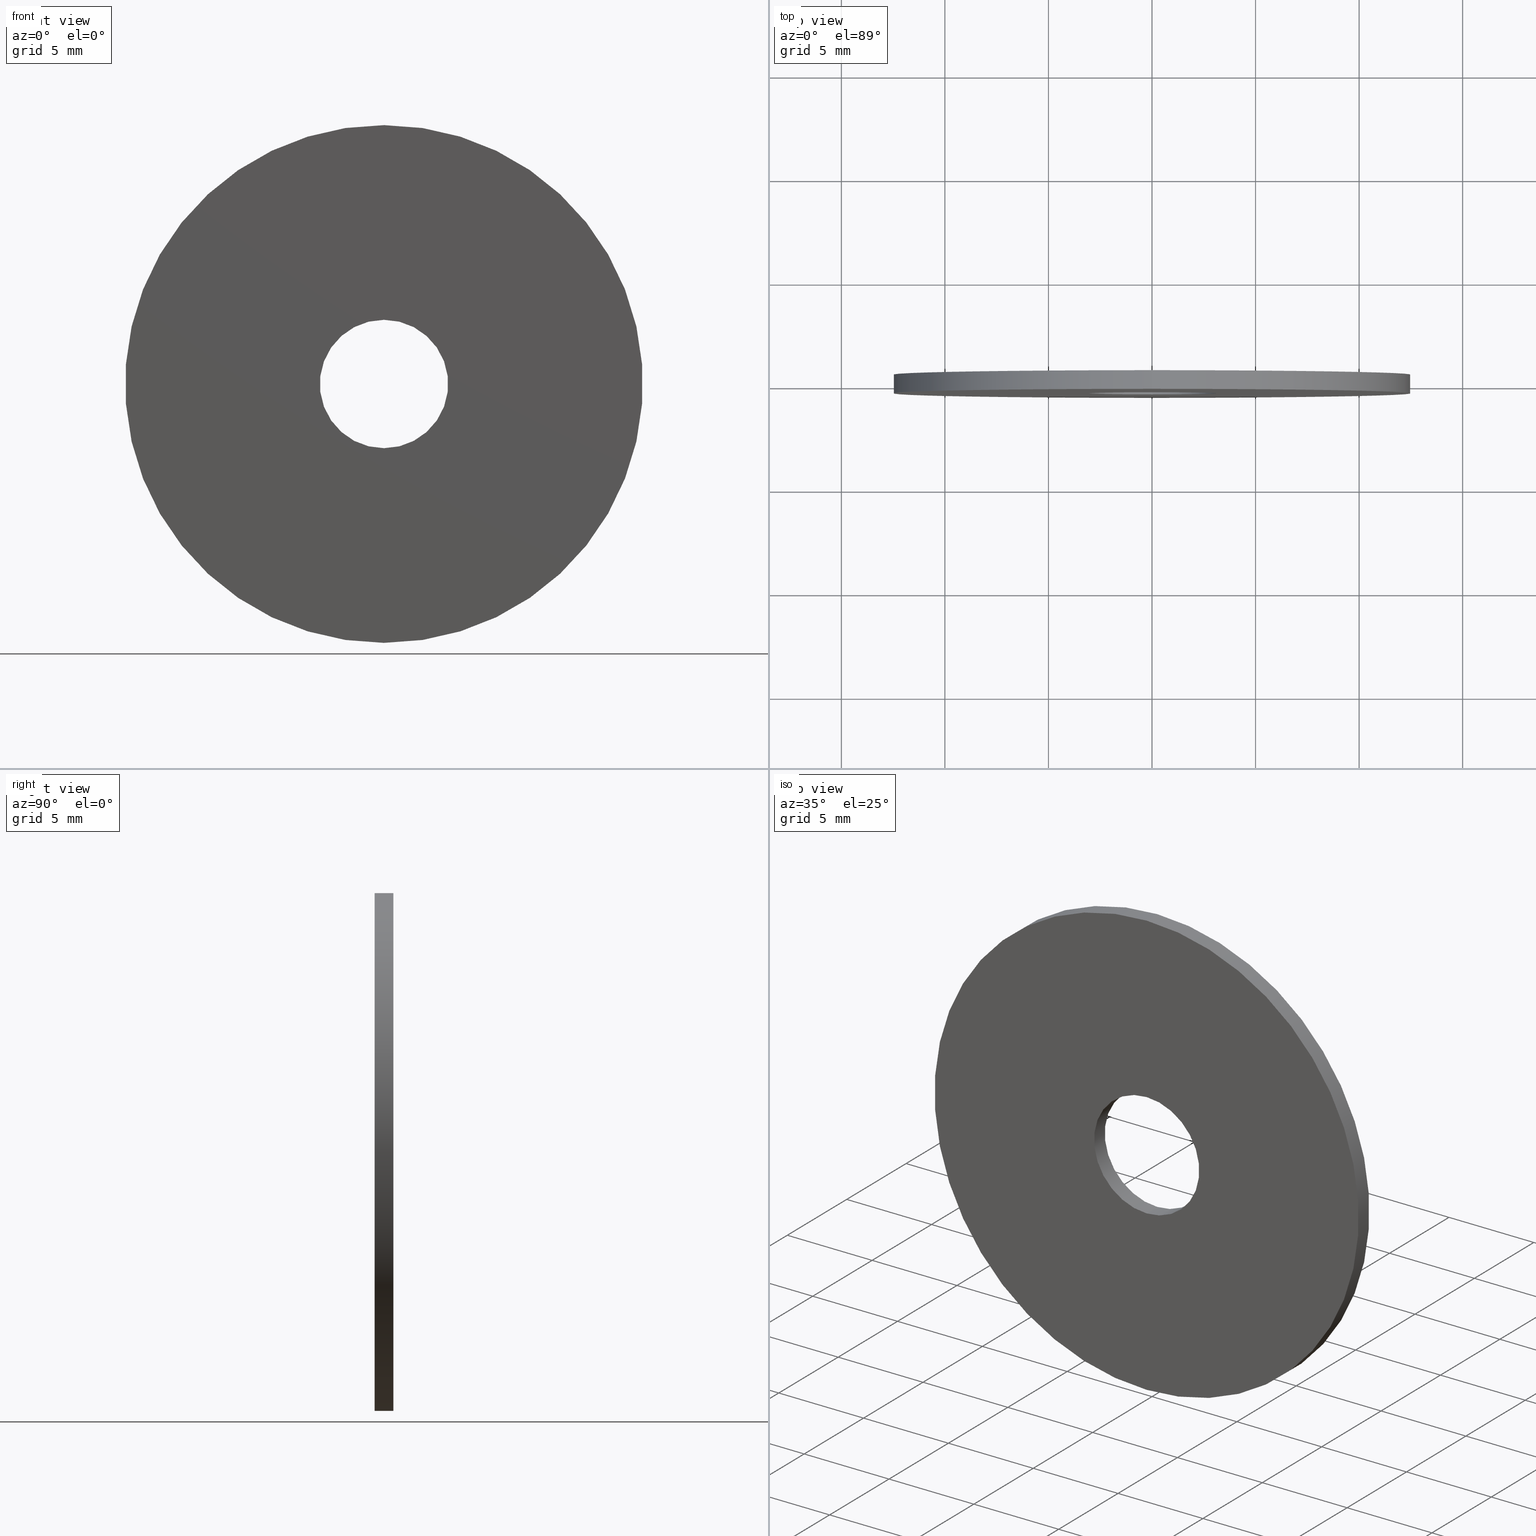
[diagram: canonical four-view strip — front | top / right | iso, engineering-drawing reading convention]
A machine part, canonical four-view strip (front | top / right | iso — engineering-drawing reading convention). The complete STEP part file that produces these views, byte-faithful:
ISO-10303-21;
HEADER;
FILE_DESCRIPTION (( 'STEP AP203' ),
    '1' );
FILE_NAME ('1.4.2.136-ZGH-25-DK0.9.STEP',
    '2024-04-06T05:14:39',
    ( '' ),
    ( '' ),
    'SwSTEP 2.0',
    'SolidWorks 2021',
    '' );
FILE_SCHEMA (( 'CONFIG_CONTROL_DESIGN' ));
ENDSEC;

DATA;
#1 = PERSON_AND_ORGANIZATION_ROLE ( 'design_supplier' ) ;
#2 = CALENDAR_DATE ( 2024, 6, 4 ) ;
#3 = EDGE_CURVE ( 'NONE', #179, #184, #14, .T. ) ;
#4 = VERTEX_POINT ( 'NONE', #39 ) ;
#5 = VERTEX_POINT ( 'NONE', #143 ) ;
#6 = CYLINDRICAL_SURFACE ( 'NONE', #49, 12.50000000000000000 ) ;
#7 = VERTEX_POINT ( 'NONE', #122 ) ;
#8 = APPROVAL ( #136, 'δָ��' ) ;
#9 = ORIENTED_EDGE ( 'NONE', *, *, #90, .F. ) ;
#10 = CC_DESIGN_APPROVAL ( #125, ( #228 ) ) ;
#11 = DIRECTION ( 'NONE',  ( -0.000000000000000000, 1.000000000000000000, -0.000000000000000000 ) ) ;
#12 = DIRECTION ( 'NONE',  ( -0.000000000000000000, 1.000000000000000000, -0.000000000000000000 ) ) ;
#13 = CARTESIAN_POINT ( 'NONE',  ( 0.000000000000000000, -0.4500000000000000111, 0.000000000000000000 ) ) ;
#14 = CIRCLE ( 'NONE', #233, 12.50000000000000000 ) ;
#15 = DIRECTION ( 'NONE',  ( 0.000000000000000000, 1.000000000000000000, 0.000000000000000000 ) ) ;
#16 = ADVANCED_FACE ( 'NONE', ( #183 ), #6, .T. ) ;
#17 = DIRECTION ( 'NONE',  ( -0.000000000000000000, -1.000000000000000000, -0.000000000000000000 ) ) ;
#18 = DIRECTION ( 'NONE',  ( 1.000000000000000000, 0.000000000000000000, 0.000000000000000000 ) ) ;
#19 = COORDINATED_UNIVERSAL_TIME_OFFSET ( 8, 0, .AHEAD. ) ;
#20 = APPROVAL_STATUS ( 'not_yet_approved' ) ;
#21 = ORGANIZATION ( 'δָ��', 'δָ��', '' ) ;
#22 = ORIENTED_EDGE ( 'NONE', *, *, #153, .F. ) ;
#23 = ORIENTED_EDGE ( 'NONE', *, *, #3, .F. ) ;
#24 = PRODUCT_DEFINITION ( 'δ֪', '', #220, #248 ) ;
#25 = EDGE_LOOP ( 'NONE', ( #23, #142 ) ) ;
#26 = DIRECTION ( 'NONE',  ( 0.000000000000000000, 0.000000000000000000, 1.000000000000000000 ) ) ;
#27 = AXIS2_PLACEMENT_3D ( 'NONE', #13, #114, #87 ) ;
#28 = DIRECTION ( 'NONE',  ( 0.000000000000000000, 0.000000000000000000, 1.000000000000000000 ) ) ;
#29 = DIRECTION ( 'NONE',  ( -0.000000000000000000, -1.000000000000000000, -0.000000000000000000 ) ) ;
#30 = CYLINDRICAL_SURFACE ( 'NONE', #80, 3.100000000000000089 ) ;
#31 = CIRCLE ( 'NONE', #162, 12.50000000000000000 ) ;
#32 = CARTESIAN_POINT ( 'NONE',  ( 0.000000000000000000, -0.4500000000000000111, 0.000000000000000000 ) ) ;
#33 = PRODUCT_RELATED_PRODUCT_CATEGORY ( 'detail', '', ( #69 ) ) ;
#34 = COORDINATED_UNIVERSAL_TIME_OFFSET ( 8, 0, .AHEAD. ) ;
#35 = AXIS2_PLACEMENT_3D ( 'NONE', #54, #36, #18 ) ;
#36 = DIRECTION ( 'NONE',  ( 0.000000000000000000, 0.000000000000000000, 1.000000000000000000 ) ) ;
#37 = AXIS2_PLACEMENT_3D ( 'NONE', #32, #11, #28 ) ;
#38 = DIRECTION ( 'NONE',  ( 0.000000000000000000, 0.000000000000000000, 1.000000000000000000 ) ) ;
#39 = CARTESIAN_POINT ( 'NONE',  ( 3.796405077356794918E-16, -0.4500000000000000111, -3.100000000000000089 ) ) ;
#40 = EDGE_CURVE ( 'NONE', #5, #185, #121, .T. ) ;
#41 = CIRCLE ( 'NONE', #27, 3.100000000000000089 ) ;
#42 = ORIENTED_EDGE ( 'NONE', *, *, #153, .T. ) ;
#43 = DIRECTION ( 'NONE',  ( 0.000000000000000000, -0.000000000000000000, 1.000000000000000000 ) ) ;
#44 = CARTESIAN_POINT ( 'NONE',  ( 3.796405077356794918E-16, -0.4500000000000000111, -3.100000000000000089 ) ) ;
#45 = AXIS2_PLACEMENT_3D ( 'NONE', #194, #242, #93 ) ;
#46 = CARTESIAN_POINT ( 'NONE',  ( 0.000000000000000000, 0.4500000000000000111, 0.000000000000000000 ) ) ;
#47 = FACE_OUTER_BOUND ( 'NONE', #106, .T. ) ;
#48 = FACE_OUTER_BOUND ( 'NONE', #25, .T. ) ;
#49 = AXIS2_PLACEMENT_3D ( 'NONE', #82, #202, #163 ) ;
#50 = PERSON_AND_ORGANIZATION ( #236, #21 ) ;
#51 = APPROVAL_STATUS ( 'not_yet_approved' ) ;
#52 = CC_DESIGN_PERSON_AND_ORGANIZATION_ASSIGNMENT ( #53, #229, ( #220 ) ) ;
#53 = PERSON_AND_ORGANIZATION ( #236, #21 ) ;
#54 = CARTESIAN_POINT ( 'NONE',  ( 0.000000000000000000, 0.000000000000000000, 0.000000000000000000 ) ) ;
#55 = DATE_AND_TIME ( #119, #76 ) ;
#56 = ORIENTED_EDGE ( 'NONE', *, *, #40, .F. ) ;
#57 = EDGE_LOOP ( 'NONE', ( #200, #156, #104, #102 ) ) ;
#58 = SHAPE_DEFINITION_REPRESENTATION ( #208, #245 ) ;
#59 = VECTOR ( 'NONE', #17, 1000.000000000000000 ) ;
#60 = ADVANCED_FACE ( 'NONE', ( #167 ), #207, .F. ) ;
#61 = ORIENTED_EDGE ( 'NONE', *, *, #193, .T. ) ;
#62 = CARTESIAN_POINT ( 'NONE',  ( 1.530808498934191521E-15, 0.4500000000000000111, 12.50000000000000000 ) ) ;
#63 = MANIFOLD_SOLID_BREP ( '�г�-����3', #239 ) ;
#64 = DIRECTION ( 'NONE',  ( 0.000000000000000000, 0.000000000000000000, 1.000000000000000000 ) ) ;
#65 = VECTOR ( 'NONE', #241, 1000.000000000000000 ) ;
#66 = CARTESIAN_POINT ( 'NONE',  ( 0.000000000000000000, 0.4500000000000000111, 3.100000000000000089 ) ) ;
#67 = CC_DESIGN_PERSON_AND_ORGANIZATION_ASSIGNMENT ( #50, #155, ( #69 ) ) ;
#68 = FACE_OUTER_BOUND ( 'NONE', #57, .T. ) ;
#69 = PRODUCT ( '1.4.2.136-ZGH-25-DK0.9', '1.4.2.136-ZGH-25-DK0.9', '', ( #96 ) ) ;
#70 = CARTESIAN_POINT ( 'NONE',  ( 0.000000000000000000, -0.4500000000000000111, 3.100000000000000089 ) ) ;
#71 = LOCAL_TIME ( 13, 14, 39.00000000000000000, #19 ) ;
#72 = EDGE_CURVE ( 'NONE', #5, #4, #177, .T. ) ;
#73 =( NAMED_UNIT ( * ) PLANE_ANGLE_UNIT ( ) SI_UNIT ( $, .RADIAN. ) );
#74 = PERSON_AND_ORGANIZATION_ROLE ( 'classification_officer' ) ;
#75 = DATE_AND_TIME ( #152, #71 ) ;
#76 = LOCAL_TIME ( 13, 14, 39.00000000000000000, #116 ) ;
#77 = PERSON_AND_ORGANIZATION_ROLE ( 'creator' ) ;
#78 = ADVANCED_FACE ( 'NONE', ( #144, #110 ), #225, .T. ) ;
#79 = ORIENTED_EDGE ( 'NONE', *, *, #72, .F. ) ;
#80 = AXIS2_PLACEMENT_3D ( 'NONE', #227, #112, #126 ) ;
#81 = ORIENTED_EDGE ( 'NONE', *, *, #40, .T. ) ;
#82 = CARTESIAN_POINT ( 'NONE',  ( 0.000000000000000000, 0.4500000000000000111, 0.000000000000000000 ) ) ;
#83 = ORIENTED_EDGE ( 'NONE', *, *, #232, .F. ) ;
#84 = EDGE_CURVE ( 'NONE', #7, #179, #190, .T. ) ;
#85 = LOCAL_TIME ( 13, 14, 39.00000000000000000, #34 ) ;
#86 = EDGE_LOOP ( 'NONE', ( #221, #198 ) ) ;
#87 = DIRECTION ( 'NONE',  ( 0.000000000000000000, 0.000000000000000000, 1.000000000000000000 ) ) ;
#88 = DIRECTION ( 'NONE',  ( 0.000000000000000000, 1.000000000000000000, 0.000000000000000000 ) ) ;
#89 = DIRECTION ( 'NONE',  ( 0.000000000000000000, 1.000000000000000000, 0.000000000000000000 ) ) ;
#90 = EDGE_CURVE ( 'NONE', #238, #184, #209, .T. ) ;
#91 = AXIS2_PLACEMENT_3D ( 'NONE', #147, #15, #211 ) ;
#92 = DIRECTION ( 'NONE',  ( 0.000000000000000000, 1.000000000000000000, 0.000000000000000000 ) ) ;
#93 = DIRECTION ( 'NONE',  ( 0.000000000000000000, 0.000000000000000000, -1.000000000000000000 ) ) ;
#94 =( LENGTH_UNIT ( ) NAMED_UNIT ( * ) SI_UNIT ( .MILLI., .METRE. ) );
#95 = CIRCLE ( 'NONE', #127, 3.100000000000000089 ) ;
#96 = MECHANICAL_CONTEXT ( 'NONE', #165, 'mechanical' ) ;
#97 = DATE_TIME_ROLE ( 'classification_date' ) ;
#98 = APPROVAL_ROLE ( '' ) ;
#99 = APPROVAL ( #51, 'δָ��' ) ;
#100 = CIRCLE ( 'NONE', #132, 12.50000000000000000 ) ;
#101 = DATE_TIME_ROLE ( 'creation_date' ) ;
#102 = ORIENTED_EDGE ( 'NONE', *, *, #84, .F. ) ;
#103 = CC_DESIGN_PERSON_AND_ORGANIZATION_ASSIGNMENT ( #214, #1, ( #220 ) ) ;
#104 = ORIENTED_EDGE ( 'NONE', *, *, #240, .T. ) ;
#105 = CC_DESIGN_APPROVAL ( #8, ( #220 ) ) ;
#106 = EDGE_LOOP ( 'NONE', ( #83, #79, #81, #61 ) ) ;
#107 = EDGE_LOOP ( 'NONE', ( #22, #124, #199, #56 ) ) ;
#108 = EDGE_LOOP ( 'NONE', ( #9, #123, #237, #161 ) ) ;
#109 = CC_DESIGN_SECURITY_CLASSIFICATION ( #228, ( #220 ) ) ;
#110 = FACE_OUTER_BOUND ( 'NONE', #86, .T. ) ;
#111 = DIRECTION ( 'NONE',  ( 0.000000000000000000, 1.000000000000000000, 0.000000000000000000 ) ) ;
#112 = DIRECTION ( 'NONE',  ( -0.000000000000000000, 1.000000000000000000, -0.000000000000000000 ) ) ;
#113 = CARTESIAN_POINT ( 'NONE',  ( 0.000000000000000000, 0.4500000000000000111, 0.000000000000000000 ) ) ;
#114 = DIRECTION ( 'NONE',  ( 0.000000000000000000, 1.000000000000000000, 0.000000000000000000 ) ) ;
#115 = SECURITY_CLASSIFICATION_LEVEL ( 'unclassified' ) ;
#116 = COORDINATED_UNIVERSAL_TIME_OFFSET ( 8, 0, .AHEAD. ) ;
#117 = EDGE_CURVE ( 'NONE', #180, #185, #95, .T. ) ;
#118 = APPROVAL_ROLE ( '' ) ;
#119 = CALENDAR_DATE ( 2024, 6, 4 ) ;
#120 = APPROVAL_PERSON_ORGANIZATION ( #154, #125, #98 ) ;
#121 = LINE ( 'NONE', #70, #231 ) ;
#122 = CARTESIAN_POINT ( 'NONE',  ( 0.000000000000000000, 0.4500000000000000111, -12.50000000000000000 ) ) ;
#123 = ORIENTED_EDGE ( 'NONE', *, *, #182, .F. ) ;
#124 = ORIENTED_EDGE ( 'NONE', *, *, #232, .T. ) ;
#125 = APPROVAL ( #20, 'δָ��' ) ;
#126 = DIRECTION ( 'NONE',  ( 0.000000000000000000, 0.000000000000000000, 1.000000000000000000 ) ) ;
#127 = AXIS2_PLACEMENT_3D ( 'NONE', #113, #166, #128 ) ;
#128 = DIRECTION ( 'NONE',  ( 0.000000000000000000, 0.000000000000000000, 1.000000000000000000 ) ) ;
#129 = PLANE ( 'NONE',  #91 ) ;
#130 = CARTESIAN_POINT ( 'NONE',  ( 1.530808498934191521E-15, 0.4500000000000000111, 12.50000000000000000 ) ) ;
#131 = CC_DESIGN_DATE_AND_TIME_ASSIGNMENT ( #216, #101, ( #24 ) ) ;
#132 = AXIS2_PLACEMENT_3D ( 'NONE', #206, #189, #64 ) ;
#133 = DIRECTION ( 'NONE',  ( 0.000000000000000000, 0.000000000000000000, 1.000000000000000000 ) ) ;
#134 = PERSON_AND_ORGANIZATION ( #236, #21 ) ;
#135 = DATE_AND_TIME ( #195, #85 ) ;
#136 = APPROVAL_STATUS ( 'not_yet_approved' ) ;
#137 = LOCAL_TIME ( 13, 14, 39.00000000000000000, #175 ) ;
#138 = ADVANCED_FACE ( 'NONE', ( #47 ), #30, .F. ) ;
#139 = APPROVAL_ROLE ( '' ) ;
#140 = DATE_AND_TIME ( #2, #137 ) ;
#141 = CARTESIAN_POINT ( 'NONE',  ( 0.000000000000000000, -0.4500000000000000111, 0.000000000000000000 ) ) ;
#142 = ORIENTED_EDGE ( 'NONE', *, *, #240, .F. ) ;
#143 = CARTESIAN_POINT ( 'NONE',  ( 0.000000000000000000, -0.4500000000000000111, 3.100000000000000089 ) ) ;
#144 = FACE_BOUND ( 'NONE', #160, .T. ) ;
#145 = CC_DESIGN_PERSON_AND_ORGANIZATION_ASSIGNMENT ( #134, #77, ( #24 ) ) ;
#146 =( GEOMETRIC_REPRESENTATION_CONTEXT ( 3 ) GLOBAL_UNCERTAINTY_ASSIGNED_CONTEXT ( ( #148 ) ) GLOBAL_UNIT_ASSIGNED_CONTEXT ( ( #94, #73, #215 ) ) REPRESENTATION_CONTEXT ( 'NONE', 'WORKASPACE' ) );
#147 = CARTESIAN_POINT ( 'NONE',  ( 0.000000000000000000, -0.4500000000000000111, 0.000000000000000000 ) ) ;
#148 = UNCERTAINTY_MEASURE_WITH_UNIT (LENGTH_MEASURE( 1.000000000000000082E-05 ), #94, 'distance_accuracy_value', 'NONE');
#149 = CARTESIAN_POINT ( 'NONE',  ( 3.796405077356794918E-16, 0.4500000000000000111, -3.100000000000000089 ) ) ;
#150 = CYLINDRICAL_SURFACE ( 'NONE', #45, 12.50000000000000000 ) ;
#151 = PERSON_AND_ORGANIZATION ( #236, #21 ) ;
#152 = CALENDAR_DATE ( 2024, 6, 4 ) ;
#153 = EDGE_CURVE ( 'NONE', #4, #5, #41, .T. ) ;
#154 = PERSON_AND_ORGANIZATION ( #236, #21 ) ;
#155 = PERSON_AND_ORGANIZATION_ROLE ( 'design_owner' ) ;
#156 = ORIENTED_EDGE ( 'NONE', *, *, #90, .T. ) ;
#157 = ORIENTED_EDGE ( 'NONE', *, *, #117, .F. ) ;
#158 = APPLICATION_CONTEXT ( 'configuration controlled 3d designs of mechanical parts and assemblies' ) ;
#159 = APPROVAL_DATE_TIME ( #140, #125 ) ;
#160 = EDGE_LOOP ( 'NONE', ( #234, #157 ) ) ;
#161 = ORIENTED_EDGE ( 'NONE', *, *, #3, .T. ) ;
#162 = AXIS2_PLACEMENT_3D ( 'NONE', #204, #89, #133 ) ;
#163 = DIRECTION ( 'NONE',  ( 0.000000000000000000, 0.000000000000000000, -1.000000000000000000 ) ) ;
#164 = LINE ( 'NONE', #44, #65 ) ;
#165 = APPLICATION_CONTEXT ( 'configuration controlled 3d designs of mechanical parts and assemblies' ) ;
#166 = DIRECTION ( 'NONE',  ( 0.000000000000000000, 1.000000000000000000, 0.000000000000000000 ) ) ;
#167 = FACE_OUTER_BOUND ( 'NONE', #107, .T. ) ;
#168 = CARTESIAN_POINT ( 'NONE',  ( 0.000000000000000000, -0.4500000000000000111, 0.000000000000000000 ) ) ;
#169 = CC_DESIGN_DATE_AND_TIME_ASSIGNMENT ( #75, #97, ( #228 ) ) ;
#170 = CARTESIAN_POINT ( 'NONE',  ( 1.530808498934191521E-15, -0.4500000000000000111, 12.50000000000000000 ) ) ;
#171 = AXIS2_PLACEMENT_3D ( 'NONE', #46, #111, #43 ) ;
#172 = CC_DESIGN_PERSON_AND_ORGANIZATION_ASSIGNMENT ( #249, #74, ( #228 ) ) ;
#173 = APPROVAL_DATE_TIME ( #135, #8 ) ;
#174 = APPLICATION_PROTOCOL_DEFINITION ( 'international standard', 'config_control_design', 1994, #165 ) ;
#175 = COORDINATED_UNIVERSAL_TIME_OFFSET ( 8, 0, .AHEAD. ) ;
#176 = CC_DESIGN_APPROVAL ( #99, ( #24 ) ) ;
#177 = CIRCLE ( 'NONE', #197, 3.100000000000000089 ) ;
#178 = APPLICATION_PROTOCOL_DEFINITION ( 'international standard', 'config_control_design', 1994, #158 ) ;
#179 = VERTEX_POINT ( 'NONE', #188 ) ;
#180 = VERTEX_POINT ( 'NONE', #149 ) ;
#181 = APPROVAL_PERSON_ORGANIZATION ( #196, #99, #139 ) ;
#182 = EDGE_CURVE ( 'NONE', #7, #238, #31, .T. ) ;
#183 = FACE_OUTER_BOUND ( 'NONE', #108, .T. ) ;
#184 = VERTEX_POINT ( 'NONE', #170 ) ;
#185 = VERTEX_POINT ( 'NONE', #66 ) ;
#186 = ADVANCED_FACE ( 'NONE', ( #192, #48 ), #129, .F. ) ;
#187 = AXIS2_PLACEMENT_3D ( 'NONE', #246, #222, #26 ) ;
#188 = CARTESIAN_POINT ( 'NONE',  ( 0.000000000000000000, -0.4500000000000000111, -12.50000000000000000 ) ) ;
#189 = DIRECTION ( 'NONE',  ( 0.000000000000000000, 1.000000000000000000, 0.000000000000000000 ) ) ;
#190 = LINE ( 'NONE', #243, #59 ) ;
#191 = CIRCLE ( 'NONE', #187, 12.50000000000000000 ) ;
#192 = FACE_BOUND ( 'NONE', #201, .T. ) ;
#193 = EDGE_CURVE ( 'NONE', #185, #180, #224, .T. ) ;
#194 = CARTESIAN_POINT ( 'NONE',  ( 0.000000000000000000, 0.4500000000000000111, 0.000000000000000000 ) ) ;
#195 = CALENDAR_DATE ( 2024, 6, 4 ) ;
#196 = PERSON_AND_ORGANIZATION ( #236, #21 ) ;
#197 = AXIS2_PLACEMENT_3D ( 'NONE', #168, #88, #223 ) ;
#198 = ORIENTED_EDGE ( 'NONE', *, *, #219, .T. ) ;
#199 = ORIENTED_EDGE ( 'NONE', *, *, #117, .T. ) ;
#200 = ORIENTED_EDGE ( 'NONE', *, *, #219, .F. ) ;
#201 = EDGE_LOOP ( 'NONE', ( #235, #42 ) ) ;
#202 = DIRECTION ( 'NONE',  ( -0.000000000000000000, -1.000000000000000000, -0.000000000000000000 ) ) ;
#203 = ADVANCED_FACE ( 'NONE', ( #68 ), #150, .T. ) ;
#204 = CARTESIAN_POINT ( 'NONE',  ( 0.000000000000000000, 0.4500000000000000111, 0.000000000000000000 ) ) ;
#205 = VECTOR ( 'NONE', #29, 1000.000000000000000 ) ;
#206 = CARTESIAN_POINT ( 'NONE',  ( 0.000000000000000000, -0.4500000000000000111, 0.000000000000000000 ) ) ;
#207 = CYLINDRICAL_SURFACE ( 'NONE', #37, 3.100000000000000089 ) ;
#208 = PRODUCT_DEFINITION_SHAPE ( 'NONE', 'NONE',  #24 ) ;
#209 = LINE ( 'NONE', #130, #205 ) ;
#210 = AXIS2_PLACEMENT_3D ( 'NONE', #226, #92, #244 ) ;
#211 = DIRECTION ( 'NONE',  ( 0.000000000000000000, -0.000000000000000000, 1.000000000000000000 ) ) ;
#212 = COORDINATED_UNIVERSAL_TIME_OFFSET ( 8, 0, .AHEAD. ) ;
#213 = APPROVAL_PERSON_ORGANIZATION ( #151, #8, #118 ) ;
#214 = PERSON_AND_ORGANIZATION ( #236, #21 ) ;
#215 =( NAMED_UNIT ( * ) SI_UNIT ( $, .STERADIAN. ) SOLID_ANGLE_UNIT ( ) );
#216 = DATE_AND_TIME ( #230, #217 ) ;
#217 = LOCAL_TIME ( 13, 14, 39.00000000000000000, #212 ) ;
#218 = DIRECTION ( 'NONE',  ( 0.000000000000000000, 1.000000000000000000, 0.000000000000000000 ) ) ;
#219 = EDGE_CURVE ( 'NONE', #238, #7, #191, .T. ) ;
#220 = PRODUCT_DEFINITION_FORMATION_WITH_SPECIFIED_SOURCE ( '�κ�', '', #69, .NOT_KNOWN. ) ;
#221 = ORIENTED_EDGE ( 'NONE', *, *, #182, .T. ) ;
#222 = DIRECTION ( 'NONE',  ( 0.000000000000000000, 1.000000000000000000, 0.000000000000000000 ) ) ;
#223 = DIRECTION ( 'NONE',  ( 0.000000000000000000, 0.000000000000000000, 1.000000000000000000 ) ) ;
#224 = CIRCLE ( 'NONE', #210, 3.100000000000000089 ) ;
#225 = PLANE ( 'NONE',  #171 ) ;
#226 = CARTESIAN_POINT ( 'NONE',  ( 0.000000000000000000, 0.4500000000000000111, 0.000000000000000000 ) ) ;
#227 = CARTESIAN_POINT ( 'NONE',  ( 0.000000000000000000, -0.4500000000000000111, 0.000000000000000000 ) ) ;
#228 = SECURITY_CLASSIFICATION ( '', '', #115 ) ;
#229 = PERSON_AND_ORGANIZATION_ROLE ( 'creator' ) ;
#230 = CALENDAR_DATE ( 2024, 6, 4 ) ;
#231 = VECTOR ( 'NONE', #12, 1000.000000000000000 ) ;
#232 = EDGE_CURVE ( 'NONE', #4, #180, #164, .T. ) ;
#233 = AXIS2_PLACEMENT_3D ( 'NONE', #141, #218, #38 ) ;
#234 = ORIENTED_EDGE ( 'NONE', *, *, #193, .F. ) ;
#235 = ORIENTED_EDGE ( 'NONE', *, *, #72, .T. ) ;
#236 = PERSON ( 'δָ��', 'δָ��', 'δָ��', ('δָ��'), ('δָ��'), ('δָ��') ) ;
#237 = ORIENTED_EDGE ( 'NONE', *, *, #84, .T. ) ;
#238 = VERTEX_POINT ( 'NONE', #62 ) ;
#239 = CLOSED_SHELL ( 'NONE', ( #60, #203, #16, #78, #186, #138 ) ) ;
#240 = EDGE_CURVE ( 'NONE', #184, #179, #100, .T. ) ;
#241 = DIRECTION ( 'NONE',  ( -0.000000000000000000, 1.000000000000000000, -0.000000000000000000 ) ) ;
#242 = DIRECTION ( 'NONE',  ( -0.000000000000000000, -1.000000000000000000, -0.000000000000000000 ) ) ;
#243 = CARTESIAN_POINT ( 'NONE',  ( 0.000000000000000000, 0.4500000000000000111, -12.50000000000000000 ) ) ;
#244 = DIRECTION ( 'NONE',  ( 0.000000000000000000, 0.000000000000000000, 1.000000000000000000 ) ) ;
#245 = ADVANCED_BREP_SHAPE_REPRESENTATION ( '1.4.2.136-ZGH-25-DK0.9', ( #63, #35 ), #146 ) ;
#246 = CARTESIAN_POINT ( 'NONE',  ( 0.000000000000000000, 0.4500000000000000111, 0.000000000000000000 ) ) ;
#247 = APPROVAL_DATE_TIME ( #55, #99 ) ;
#248 = DESIGN_CONTEXT ( 'detailed design', #158, 'design' ) ;
#249 = PERSON_AND_ORGANIZATION ( #236, #21 ) ;
ENDSEC;
END-ISO-10303-21;
